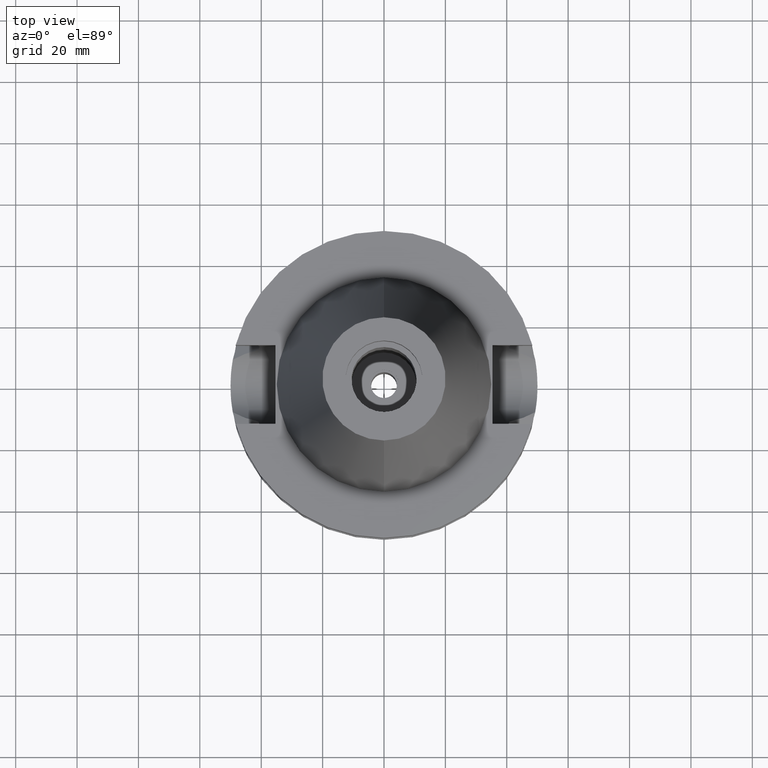
[diagram: clean part render]
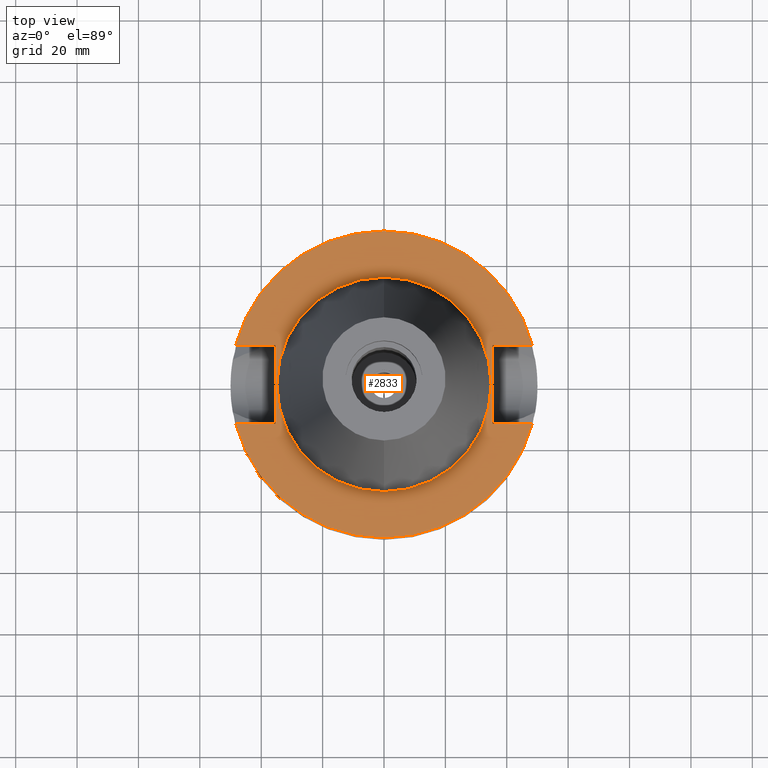
[diagram: same view with one face highlighted and labeled with its STEP entity id]
A machine part, top view. The second image highlights one B-rep face of the part: STEP entity #2833.
In plain terms, the highlighted planar face has unit normal (0, 0, -1).
Its self-contained STEP definition (entity closure, byte-faithful):
#49 = EDGE_CURVE ( 'NONE', #584, #612, #383, .T. ) ;
#78 = CIRCLE ( 'NONE', #2143, 50.00000000000000000 ) ;
#122 = CARTESIAN_POINT ( 'NONE',  ( 35.39999999999999858, 12.84999999999999964, -1.500000000000000000 ) ) ;
#126 = DIRECTION ( 'NONE',  ( -1.000000000000000000, 0.0000000000000000000, 0.0000000000000000000 ) ) ;
#176 = AXIS2_PLACEMENT_3D ( 'NONE', #1326, #2772, #614 ) ;
#207 = DIRECTION ( 'NONE',  ( -1.000000000000000000, 0.0000000000000000000, 0.0000000000000000000 ) ) ;
#296 = ORIENTED_EDGE ( 'NONE', *, *, #1090, .T. ) ;
#316 = ORIENTED_EDGE ( 'NONE', *, *, #49, .F. ) ;
#352 = CARTESIAN_POINT ( 'NONE',  ( 35.39999999999999858, -12.84999999999999964, -1.500000000000000000 ) ) ;
#364 = LINE ( 'NONE', #1361, #867 ) ;
#383 = LINE ( 'NONE', #352, #702 ) ;
#405 = CARTESIAN_POINT ( 'NONE',  ( 35.39999999999999858, 12.84999999999999964, -1.500000000000000000 ) ) ;
#548 = AXIS2_PLACEMENT_3D ( 'NONE', #1023, #1053, #1259 ) ;
#550 = EDGE_CURVE ( 'NONE', #719, #832, #2155, .T. ) ;
#555 = ORIENTED_EDGE ( 'NONE', *, *, #2961, .F. ) ;
#584 = VERTEX_POINT ( 'NONE', #1174 ) ;
#596 = CIRCLE ( 'NONE', #176, 34.92499999999999716 ) ;
#612 = VERTEX_POINT ( 'NONE', #3137 ) ;
#614 = DIRECTION ( 'NONE',  ( 0.0000000000000000000, 1.000000000000000000, 0.0000000000000000000 ) ) ;
#659 = VECTOR ( 'NONE', #207, 1000.000000000000000 ) ;
#677 = LINE ( 'NONE', #1149, #1985 ) ;
#702 = VECTOR ( 'NONE', #1849, 1000.000000000000000 ) ;
#707 = CARTESIAN_POINT ( 'NONE',  ( 0.0000000000000000000, -34.92499999999999716, -1.500000000000000000 ) ) ;
#719 = VERTEX_POINT ( 'NONE', #3083 ) ;
#721 = VERTEX_POINT ( 'NONE', #1889 ) ;
#732 = CARTESIAN_POINT ( 'NONE',  ( 0.0000000000000000000, 2.584678301939999885E-14, -1.500000000000000000 ) ) ;
#755 = VERTEX_POINT ( 'NONE', #2884 ) ;
#786 = CARTESIAN_POINT ( 'NONE',  ( -48.32057015392000210, 12.84999999999999964, -1.500000000000000000 ) ) ;
#801 = VERTEX_POINT ( 'NONE', #405 ) ;
#806 = EDGE_CURVE ( 'NONE', #719, #2590, #677, .T. ) ;
#808 = VERTEX_POINT ( 'NONE', #707 ) ;
#813 = ORIENTED_EDGE ( 'NONE', *, *, #1712, .F. ) ;
#832 = VERTEX_POINT ( 'NONE', #1418 ) ;
#867 = VECTOR ( 'NONE', #2333, 1000.000000000000000 ) ;
#872 = ORIENTED_EDGE ( 'NONE', *, *, #2108, .F. ) ;
#873 = EDGE_CURVE ( 'NONE', #808, #721, #1785, .T. ) ;
#908 = DIRECTION ( 'NONE',  ( 0.0000000000000000000, 0.0000000000000000000, 1.000000000000000000 ) ) ;
#1023 = CARTESIAN_POINT ( 'NONE',  ( 0.0000000000000000000, 1.206277097159999845E-14, -1.500000000000000000 ) ) ;
#1053 = DIRECTION ( 'NONE',  ( 0.0000000000000000000, 0.0000000000000000000, -1.000000000000000000 ) ) ;
#1090 = EDGE_CURVE ( 'NONE', #801, #755, #1374, .T. ) ;
#1123 = VECTOR ( 'NONE', #126, 1000.000000000000000 ) ;
#1139 = DIRECTION ( 'NONE',  ( 1.000000000000000000, 0.0000000000000000000, 0.0000000000000000000 ) ) ;
#1149 = CARTESIAN_POINT ( 'NONE',  ( -35.39999999999999858, -12.84999999999999964, -1.500000000000000000 ) ) ;
#1174 = CARTESIAN_POINT ( 'NONE',  ( 35.39999999999999858, -12.84999999999999964, -1.500000000000000000 ) ) ;
#1220 = ORIENTED_EDGE ( 'NONE', *, *, #550, .T. ) ;
#1259 = DIRECTION ( 'NONE',  ( 0.0000000000000000000, -1.000000000000000000, 0.0000000000000000000 ) ) ;
#1279 = DIRECTION ( 'NONE',  ( 0.0000000000000000000, 1.000000000000000000, 0.0000000000000000000 ) ) ;
#1326 = CARTESIAN_POINT ( 'NONE',  ( 0.0000000000000000000, 2.584678301939999885E-14, -1.500000000000000000 ) ) ;
#1361 = CARTESIAN_POINT ( 'NONE',  ( 35.39999999999999858, 12.84999999999999964, -1.500000000000000000 ) ) ;
#1374 = LINE ( 'NONE', #122, #3060 ) ;
#1378 = AXIS2_PLACEMENT_3D ( 'NONE', #1763, #1802, #1279 ) ;
#1387 = CARTESIAN_POINT ( 'NONE',  ( 0.0000000000000000000, 2.584678301939999885E-14, -1.500000000000000000 ) ) ;
#1418 = CARTESIAN_POINT ( 'NONE',  ( -48.32057015392000210, -12.84999999999999964, -1.500000000000000000 ) ) ;
#1461 = EDGE_LOOP ( 'NONE', ( #1220, #813, #316, #872, #296, #555, #2465, #2239 ) ) ;
#1489 = EDGE_CURVE ( 'NONE', #721, #808, #596, .T. ) ;
#1499 = FACE_BOUND ( 'NONE', #1721, .T. ) ;
#1710 = CARTESIAN_POINT ( 'NONE',  ( -35.39999999999999858, 12.84999999999999964, -1.500000000000000000 ) ) ;
#1712 = EDGE_CURVE ( 'NONE', #612, #832, #78, .T. ) ;
#1718 = DIRECTION ( 'NONE',  ( 0.0000000000000000000, 0.0000000000000000000, -1.000000000000000000 ) ) ;
#1721 = EDGE_LOOP ( 'NONE', ( #2749, #2719 ) ) ;
#1763 = CARTESIAN_POINT ( 'NONE',  ( 0.0000000000000000000, 2.584678301939999885E-14, -1.500000000000000000 ) ) ;
#1785 = CIRCLE ( 'NONE', #3157, 34.92499999999999716 ) ;
#1802 = DIRECTION ( 'NONE',  ( 0.0000000000000000000, 0.0000000000000000000, -1.000000000000000000 ) ) ;
#1824 = VERTEX_POINT ( 'NONE', #786 ) ;
#1849 = DIRECTION ( 'NONE',  ( 1.000000000000000000, 0.0000000000000000000, 0.0000000000000000000 ) ) ;
#1889 = CARTESIAN_POINT ( 'NONE',  ( 0.0000000000000000000, 34.92499999999999716, -1.500000000000000000 ) ) ;
#1898 = DIRECTION ( 'NONE',  ( 0.0000000000000000000, -1.000000000000000000, 0.0000000000000000000 ) ) ;
#1937 = DIRECTION ( 'NONE',  ( 0.0000000000000000000, 1.000000000000000000, 0.0000000000000000000 ) ) ;
#1985 = VECTOR ( 'NONE', #1937, 1000.000000000000000 ) ;
#2108 = EDGE_CURVE ( 'NONE', #801, #584, #364, .T. ) ;
#2143 = AXIS2_PLACEMENT_3D ( 'NONE', #732, #1718, #1898 ) ;
#2155 = LINE ( 'NONE', #2881, #1123 ) ;
#2211 = PLANE ( 'NONE',  #548 ) ;
#2239 = ORIENTED_EDGE ( 'NONE', *, *, #806, .F. ) ;
#2280 = EDGE_CURVE ( 'NONE', #2590, #1824, #2682, .T. ) ;
#2333 = DIRECTION ( 'NONE',  ( 0.0000000000000000000, -1.000000000000000000, 0.0000000000000000000 ) ) ;
#2362 = CIRCLE ( 'NONE', #1378, 50.00000000000000000 ) ;
#2431 = CARTESIAN_POINT ( 'NONE',  ( -35.39999999999999858, 12.84999999999999964, -1.500000000000000000 ) ) ;
#2465 = ORIENTED_EDGE ( 'NONE', *, *, #2280, .F. ) ;
#2502 = FACE_OUTER_BOUND ( 'NONE', #1461, .T. ) ;
#2590 = VERTEX_POINT ( 'NONE', #1710 ) ;
#2682 = LINE ( 'NONE', #2431, #659 ) ;
#2719 = ORIENTED_EDGE ( 'NONE', *, *, #873, .F. ) ;
#2749 = ORIENTED_EDGE ( 'NONE', *, *, #1489, .F. ) ;
#2772 = DIRECTION ( 'NONE',  ( 0.0000000000000000000, 0.0000000000000000000, 1.000000000000000000 ) ) ;
#2833 = ADVANCED_FACE ( 'NONE', ( #2502, #1499 ), #2211, .F. ) ;
#2870 = DIRECTION ( 'NONE',  ( 0.0000000000000000000, -1.000000000000000000, 0.0000000000000000000 ) ) ;
#2881 = CARTESIAN_POINT ( 'NONE',  ( -35.39999999999999858, -12.84999999999999964, -1.500000000000000000 ) ) ;
#2884 = CARTESIAN_POINT ( 'NONE',  ( 48.32057015392000210, 12.84999999999999964, -1.500000000000000000 ) ) ;
#2961 = EDGE_CURVE ( 'NONE', #1824, #755, #2362, .T. ) ;
#3060 = VECTOR ( 'NONE', #1139, 1000.000000000000000 ) ;
#3083 = CARTESIAN_POINT ( 'NONE',  ( -35.39999999999999858, -12.84999999999999964, -1.500000000000000000 ) ) ;
#3137 = CARTESIAN_POINT ( 'NONE',  ( 48.32057015392000210, -12.84999999999999964, -1.500000000000000000 ) ) ;
#3157 = AXIS2_PLACEMENT_3D ( 'NONE', #1387, #908, #2870 ) ;